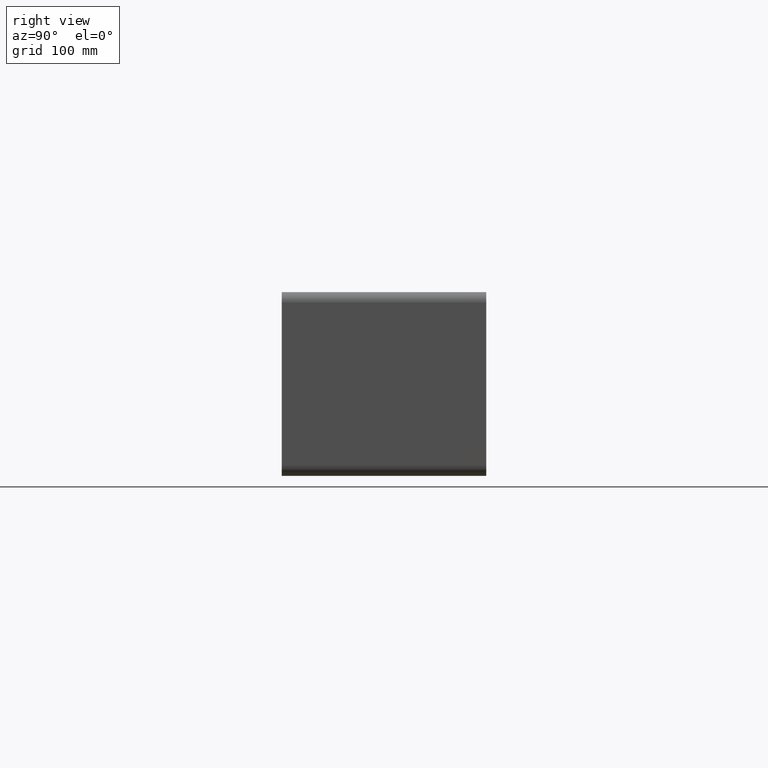
[diagram: clean part render]
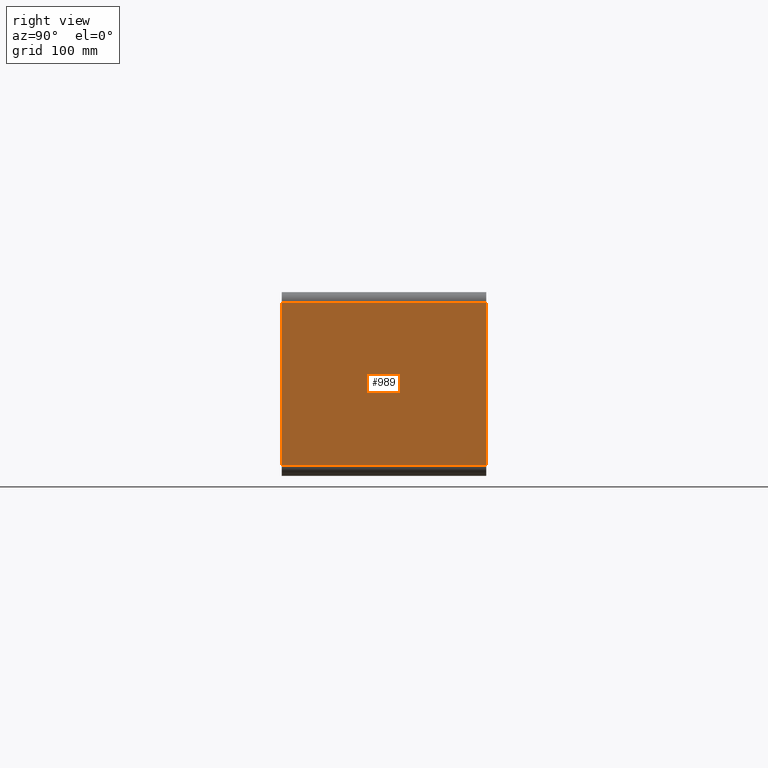
[diagram: same view with one face highlighted and labeled with its STEP entity id]
A machine part, right view. The second image highlights one B-rep face of the part: STEP entity #989.
In plain terms, the highlighted planar face has unit normal (1, 0, 0).
Its self-contained STEP definition (entity closure, byte-faithful):
#700=CARTESIAN_POINT('',(331.25,-3.0,-79.75));
#701=VERTEX_POINT('',#700);
#709=CARTESIAN_POINT('',(331.25,-3.0,79.750000000000028));
#710=VERTEX_POINT('',#709);
#711=CARTESIAN_POINT('',(331.25,-3.0,-79.75));
#712=DIRECTION('',(0.0,0.0,1.0));
#713=VECTOR('',#712,159.50000000000003);
#714=LINE('',#711,#713);
#715=EDGE_CURVE('',#701,#710,#714,.T.);
#821=CARTESIAN_POINT('',(331.25,197.0,-79.75));
#822=VERTEX_POINT('',#821);
#830=CARTESIAN_POINT('',(331.25,197.0,-79.75));
#831=DIRECTION('',(0.0,-1.0,0.0));
#832=VECTOR('',#831,200.0);
#833=LINE('',#830,#832);
#834=EDGE_CURVE('',#822,#701,#833,.T.);
#847=CARTESIAN_POINT('',(331.25,197.0,79.750000000000028));
#848=VERTEX_POINT('',#847);
#849=CARTESIAN_POINT('',(331.25,-3.0,79.750000000000028));
#850=DIRECTION('',(0.0,1.0,0.0));
#851=VECTOR('',#850,200.0);
#852=LINE('',#849,#851);
#853=EDGE_CURVE('',#710,#848,#852,.T.);
#973=CARTESIAN_POINT('',(331.25,0.0,89.750000000000028));
#974=DIRECTION('',(1.0,0.0,0.0));
#975=DIRECTION('',(0.0,0.0,-1.0));
#976=AXIS2_PLACEMENT_3D('',#973,#974,#975);
#977=PLANE('',#976);
#978=ORIENTED_EDGE('',*,*,#834,.F.);
#979=CARTESIAN_POINT('',(331.25,197.0,79.750000000000028));
#980=DIRECTION('',(0.0,0.0,-1.0));
#981=VECTOR('',#980,159.50000000000003);
#982=LINE('',#979,#981);
#983=EDGE_CURVE('',#848,#822,#982,.T.);
#984=ORIENTED_EDGE('',*,*,#983,.F.);
#985=ORIENTED_EDGE('',*,*,#853,.F.);
#986=ORIENTED_EDGE('',*,*,#715,.F.);
#987=EDGE_LOOP('',(#978,#984,#985,#986));
#988=FACE_OUTER_BOUND('',#987,.T.);
#989=ADVANCED_FACE('',(#988),#977,.T.);